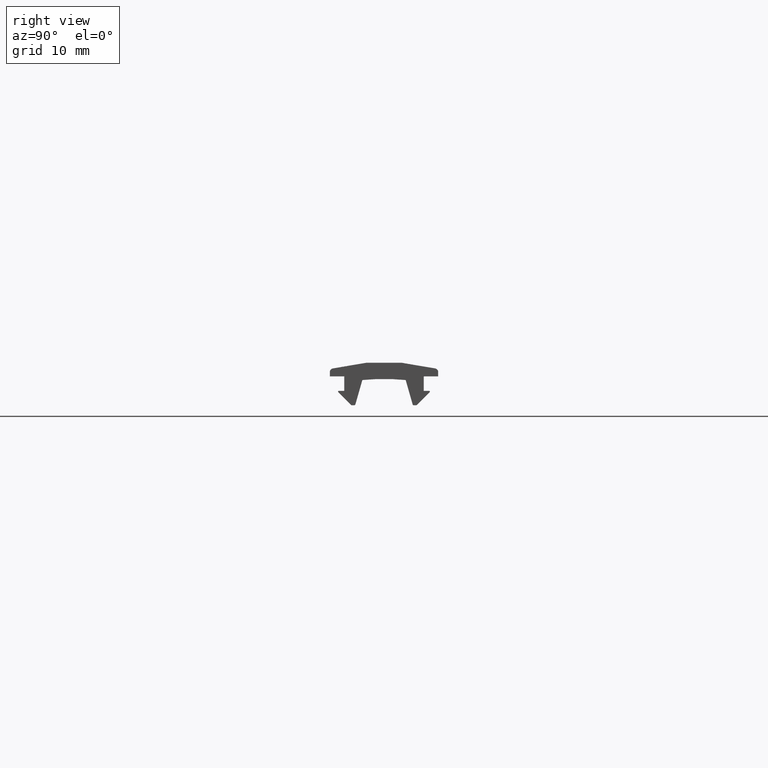
[diagram: clean part render]
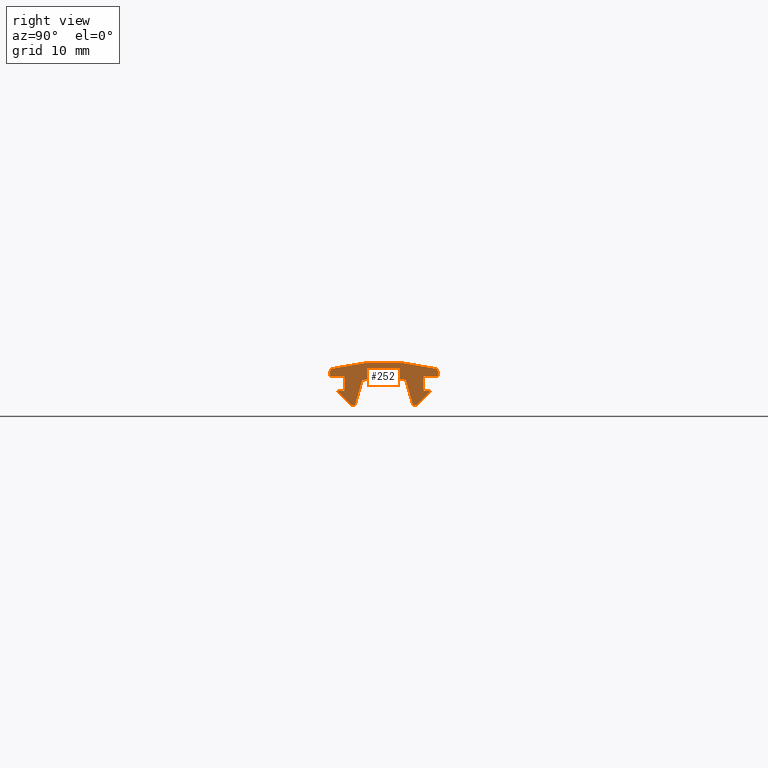
[diagram: same view with one face highlighted and labeled with its STEP entity id]
A machine part, right view. The second image highlights one B-rep face of the part: STEP entity #252.
In plain terms, the highlighted planar face has unit normal (-1, 0, 0).
Its self-contained STEP definition (entity closure, byte-faithful):
#7=CARTESIAN_POINT('',(100.0,-6.358578643762679,-1.750281450180139));
#8=VERTEX_POINT('',#7);
#9=CARTESIAN_POINT('',(100.0,-6.329289321881336,-1.820992128298793));
#10=VERTEX_POINT('',#9);
#11=CARTESIAN_POINT('',(100.0,-6.258578643762680,-1.750281450180139));
#12=DIRECTION('',(1.0,6.123234E-017,-3.749399E-033));
#13=DIRECTION('',(6.123234E-017,-1.0,6.123234E-017));
#14=AXIS2_PLACEMENT_3D('',#11,#12,#13);
#15=CIRCLE('',#14,0.100000000000000);
#16=EDGE_CURVE('',#8,#10,#15,.T.);
#44=CARTESIAN_POINT('',(100.0,8.250000000000011,-3.949722514642862));
#45=DIRECTION('',(-1.0,0.0,0.0));
#46=DIRECTION('',(0.0,-1.0,0.0));
#47=AXIS2_PLACEMENT_3D('',#44,#45,#46);
#48=PLANE('',#47);
#49=CARTESIAN_POINT('',(100.0,-5.499999999999989,-1.650281450180138));
#50=VERTEX_POINT('',#49);
#51=CARTESIAN_POINT('',(100.0,-6.258578643762679,-1.650281450180138));
#52=VERTEX_POINT('',#51);
#53=CARTESIAN_POINT('',(100.0,-5.499999999999989,-1.650281450180138));
#54=DIRECTION('',(0.0,-1.0,0.0));
#55=VECTOR('',#54,0.758578643762690);
#56=LINE('',#53,#55);
#57=EDGE_CURVE('',#50,#52,#56,.T.);
#58=ORIENTED_EDGE('',*,*,#57,.T.);
#59=CARTESIAN_POINT('',(100.0,-6.258578643762680,-1.750281450180139));
#60=DIRECTION('',(1.0,6.123234E-017,-3.749399E-033));
#61=DIRECTION('',(6.123234E-017,-1.0,6.123234E-017));
#62=AXIS2_PLACEMENT_3D('',#59,#60,#61);
#63=CIRCLE('',#62,0.100000000000000);
#64=EDGE_CURVE('',#52,#8,#63,.T.);
#65=ORIENTED_EDGE('',*,*,#64,.T.);
#66=ORIENTED_EDGE('',*,*,#16,.T.);
#67=CARTESIAN_POINT('',(100.0,-4.558578643762683,-3.591702806417446));
#68=VERTEX_POINT('',#67);
#69=CARTESIAN_POINT('',(100.0,-6.329289321881337,-1.820992128298791));
#70=DIRECTION('',(0.0,0.707106781186547,-0.707106781186548));
#71=VECTOR('',#70,2.504163056034261);
#72=LINE('',#69,#71);
#73=EDGE_CURVE('',#10,#68,#72,.T.);
#74=ORIENTED_EDGE('',*,*,#73,.T.);
#75=CARTESIAN_POINT('',(100.0,-4.417157287525374,-3.650281450180138));
#76=VERTEX_POINT('',#75);
#77=CARTESIAN_POINT('',(100.0,-4.417157287525374,-3.450281450180138));
#78=DIRECTION('',(1.0,6.123234E-017,-3.749399E-033));
#79=DIRECTION('',(6.123234E-017,-1.0,6.123234E-017));
#80=AXIS2_PLACEMENT_3D('',#77,#78,#79);
#81=CIRCLE('',#80,0.200000000000000);
#82=EDGE_CURVE('',#68,#76,#81,.T.);
#83=ORIENTED_EDGE('',*,*,#82,.T.);
#84=CARTESIAN_POINT('',(100.0,-4.150860282550864,-3.650281450180138));
#85=VERTEX_POINT('',#84);
#86=CARTESIAN_POINT('',(100.0,-4.150860282550864,-3.650281450180137));
#87=DIRECTION('',(0.0,-1.0,0.0));
#88=VECTOR('',#87,0.266297004974509);
#89=LINE('',#86,#88);
#90=EDGE_CURVE('',#85,#76,#89,.T.);
#91=ORIENTED_EDGE('',*,*,#90,.F.);
#92=CARTESIAN_POINT('',(100.0,-3.958555493022700,-3.505225675759615));
#93=VERTEX_POINT('',#92);
#94=CARTESIAN_POINT('',(100.0,-4.150860282550863,-3.450281450180138));
#95=DIRECTION('',(1.0,6.123234E-017,-3.749399E-033));
#96=DIRECTION('',(6.123234E-017,-1.0,6.123234E-017));
#97=AXIS2_PLACEMENT_3D('',#94,#95,#96);
#98=CIRCLE('',#97,0.200000000000000);
#99=EDGE_CURVE('',#85,#93,#98,.T.);
#100=ORIENTED_EDGE('',*,*,#99,.T.);
#101=CARTESIAN_POINT('',(100.0,-2.999999999999973,-0.150281450180138));
#102=VERTEX_POINT('',#101);
#103=CARTESIAN_POINT('',(100.0,-2.999999999999983,-0.150281450180136));
#104=DIRECTION('',(0.0,-0.274721127897380,-0.961523947640823));
#105=VECTOR('',#104,3.489194662089393);
#106=LINE('',#103,#105);
#107=EDGE_CURVE('',#102,#93,#106,.T.);
#108=ORIENTED_EDGE('',*,*,#107,.F.);
#109=CARTESIAN_POINT('',(100.0,3.000000000000010,-0.150281450180143));
#110=VERTEX_POINT('',#109);
#111=CARTESIAN_POINT('',(100.0,-8.881784E-016,-30.018956110195745));
#112=DIRECTION('',(1.0,6.123234E-017,-3.749399E-033));
#113=DIRECTION('',(6.123234E-017,-1.0,6.123234E-017));
#114=AXIS2_PLACEMENT_3D('',#111,#112,#113);
#115=CIRCLE('',#114,30.018956110195745);
#116=EDGE_CURVE('',#110,#102,#115,.T.);
#117=ORIENTED_EDGE('',*,*,#116,.F.);
#118=CARTESIAN_POINT('',(100.0,3.958555493022716,-3.505225675759613));
#119=VERTEX_POINT('',#118);
#120=CARTESIAN_POINT('',(100.0,3.958555493022716,-3.505225675759613));
#121=DIRECTION('',(0.0,-0.274721127897378,0.961523947640823));
#122=VECTOR('',#121,3.489194662089381);
#123=LINE('',#120,#122);
#124=EDGE_CURVE('',#119,#110,#123,.T.);
#125=ORIENTED_EDGE('',*,*,#124,.F.);
#126=CARTESIAN_POINT('',(100.0,4.150860282550879,-3.650281450180138));
#127=VERTEX_POINT('',#126);
#128=CARTESIAN_POINT('',(100.0,4.150860282550879,-3.450281450180138));
#129=DIRECTION('',(1.0,6.123234E-017,-3.749399E-033));
#130=DIRECTION('',(6.123234E-017,-1.0,6.123234E-017));
#131=AXIS2_PLACEMENT_3D('',#128,#129,#130);
#132=CIRCLE('',#131,0.200000000000000);
#133=EDGE_CURVE('',#119,#127,#132,.T.);
#134=ORIENTED_EDGE('',*,*,#133,.T.);
#135=CARTESIAN_POINT('',(100.0,4.417157287525392,-3.650281450180138));
#136=VERTEX_POINT('',#135);
#137=CARTESIAN_POINT('',(100.0,4.417157287525392,-3.650281450180138));
#138=DIRECTION('',(0.0,-1.0,0.0));
#139=VECTOR('',#138,0.266297004974513);
#140=LINE('',#137,#139);
#141=EDGE_CURVE('',#136,#127,#140,.T.);
#142=ORIENTED_EDGE('',*,*,#141,.F.);
#143=CARTESIAN_POINT('',(100.0,4.558578643762702,-3.591702806417446));
#144=VERTEX_POINT('',#143);
#145=CARTESIAN_POINT('',(100.0,4.417157287525392,-3.450281450180138));
#146=DIRECTION('',(1.0,6.123234E-017,-3.749399E-033));
#147=DIRECTION('',(6.123234E-017,-1.0,6.123234E-017));
#148=AXIS2_PLACEMENT_3D('',#145,#146,#147);
#149=CIRCLE('',#148,0.200000000000000);
#150=EDGE_CURVE('',#136,#144,#149,.T.);
#151=ORIENTED_EDGE('',*,*,#150,.T.);
#152=CARTESIAN_POINT('',(100.0,6.329289321881354,-1.820992128298794));
#153=VERTEX_POINT('',#152);
#154=CARTESIAN_POINT('',(100.0,6.329289321881354,-1.820992128298794));
#155=DIRECTION('',(0.0,-0.707106781186547,-0.707106781186548));
#156=VECTOR('',#155,2.504163056034259);
#157=LINE('',#154,#156);
#158=EDGE_CURVE('',#153,#144,#157,.T.);
#159=ORIENTED_EDGE('',*,*,#158,.F.);
#160=CARTESIAN_POINT('',(100.0,6.258578643762696,-1.650281450180139));
#161=VERTEX_POINT('',#160);
#162=CARTESIAN_POINT('',(100.0,6.258578643762696,-1.750281450180139));
#163=DIRECTION('',(1.0,6.123234E-017,-3.749399E-033));
#164=DIRECTION('',(6.123234E-017,-1.0,6.123234E-017));
#165=AXIS2_PLACEMENT_3D('',#162,#163,#164);
#166=CIRCLE('',#165,0.099999999999999);
#167=EDGE_CURVE('',#153,#161,#166,.T.);
#168=ORIENTED_EDGE('',*,*,#167,.T.);
#169=CARTESIAN_POINT('',(100.0,5.500000000000010,-1.650281450180139));
#170=VERTEX_POINT('',#169);
#171=CARTESIAN_POINT('',(100.0,5.500000000000010,-1.650281450180139));
#172=DIRECTION('',(0.0,1.0,0.0));
#173=VECTOR('',#172,0.758578643762686);
#174=LINE('',#171,#173);
#175=EDGE_CURVE('',#170,#161,#174,.T.);
#176=ORIENTED_EDGE('',*,*,#175,.F.);
#177=CARTESIAN_POINT('',(100.0,5.500000000000010,0.349718549819861));
#178=VERTEX_POINT('',#177);
#179=CARTESIAN_POINT('',(100.0,5.500000000000010,0.349718549819861));
#180=DIRECTION('',(0.0,0.0,-1.0));
#181=VECTOR('',#180,2.0);
#182=LINE('',#179,#181);
#183=EDGE_CURVE('',#178,#170,#182,.T.);
#184=ORIENTED_EDGE('',*,*,#183,.F.);
#185=CARTESIAN_POINT('',(100.0,7.500000000000010,0.349718549819861));
#186=VERTEX_POINT('',#185);
#187=CARTESIAN_POINT('',(100.0,7.500000000000010,0.349718549819861));
#188=DIRECTION('',(0.0,-1.0,0.0));
#189=VECTOR('',#188,2.0);
#190=LINE('',#187,#189);
#191=EDGE_CURVE('',#186,#178,#190,.T.);
#192=ORIENTED_EDGE('',*,*,#191,.F.);
#193=CARTESIAN_POINT('',(100.0,7.500000000000010,0.964682297960203));
#194=VERTEX_POINT('',#193);
#195=CARTESIAN_POINT('',(100.0,7.500000000000010,0.964682297960203));
#196=DIRECTION('',(0.0,0.0,-1.0));
#197=VECTOR('',#196,0.614963748140341);
#198=LINE('',#195,#197);
#199=EDGE_CURVE('',#194,#186,#198,.T.);
#200=ORIENTED_EDGE('',*,*,#199,.F.);
#201=CARTESIAN_POINT('',(100.0,7.124444444444454,1.448948320149363));
#202=VERTEX_POINT('',#201);
#203=CARTESIAN_POINT('',(100.0,7.000000000000004,0.964682297960203));
#204=DIRECTION('',(1.0,6.123234E-017,-3.749399E-033));
#205=DIRECTION('',(6.123234E-017,-1.0,6.123234E-017));
#206=AXIS2_PLACEMENT_3D('',#203,#204,#205);
#207=CIRCLE('',#206,0.500000000000001);
#208=EDGE_CURVE('',#194,#202,#207,.T.);
#209=ORIENTED_EDGE('',*,*,#208,.T.);
#210=CARTESIAN_POINT('',(100.0,-7.124444444444433,1.448948320149374));
#211=VERTEX_POINT('',#210);
#212=CARTESIAN_POINT('',(100.0,-1.065814E-014,-26.275281450180184));
#213=DIRECTION('',(1.0,6.123234E-017,-3.749399E-033));
#214=DIRECTION('',(6.123234E-017,-1.0,6.123234E-017));
#215=AXIS2_PLACEMENT_3D('',#212,#213,#214);
#216=CIRCLE('',#215,28.625000000000050);
#217=EDGE_CURVE('',#202,#211,#216,.T.);
#218=ORIENTED_EDGE('',*,*,#217,.T.);
#219=CARTESIAN_POINT('',(100.0,-7.499999999999989,0.964682297960210));
#220=VERTEX_POINT('',#219);
#221=CARTESIAN_POINT('',(100.0,-6.999999999999989,0.964682297960210));
#222=DIRECTION('',(1.0,6.123234E-017,-3.749399E-033));
#223=DIRECTION('',(6.123234E-017,-1.0,6.123234E-017));
#224=AXIS2_PLACEMENT_3D('',#221,#222,#223);
#225=CIRCLE('',#224,0.500000000000000);
#226=EDGE_CURVE('',#211,#220,#225,.T.);
#227=ORIENTED_EDGE('',*,*,#226,.T.);
#228=CARTESIAN_POINT('',(100.0,-7.499999999999989,0.349718549819862));
#229=VERTEX_POINT('',#228);
#230=CARTESIAN_POINT('',(100.0,-7.499999999999989,0.349718549819862));
#231=DIRECTION('',(0.0,0.0,1.0));
#232=VECTOR('',#231,0.614963748140347);
#233=LINE('',#230,#232);
#234=EDGE_CURVE('',#229,#220,#233,.T.);
#235=ORIENTED_EDGE('',*,*,#234,.F.);
#236=CARTESIAN_POINT('',(100.0,-5.499999999999989,0.349718549819862));
#237=VERTEX_POINT('',#236);
#238=CARTESIAN_POINT('',(100.0,-7.499999999999989,0.349718549819862));
#239=DIRECTION('',(0.0,1.0,0.0));
#240=VECTOR('',#239,2.0);
#241=LINE('',#238,#240);
#242=EDGE_CURVE('',#229,#237,#241,.T.);
#243=ORIENTED_EDGE('',*,*,#242,.T.);
#244=CARTESIAN_POINT('',(100.0,-5.499999999999989,0.349718549819862));
#245=DIRECTION('',(0.0,0.0,-1.0));
#246=VECTOR('',#245,2.0);
#247=LINE('',#244,#246);
#248=EDGE_CURVE('',#237,#50,#247,.T.);
#249=ORIENTED_EDGE('',*,*,#248,.T.);
#250=EDGE_LOOP('',(#58,#65,#66,#74,#83,#91,#100,#108,#117,#125,#134,#142,#151,#159,#168,#176,#184,#192,#200,#209,#218,#227,#235,#243,#249));
#251=FACE_OUTER_BOUND('',#250,.T.);
#252=ADVANCED_FACE('',(#251),#48,.F.);